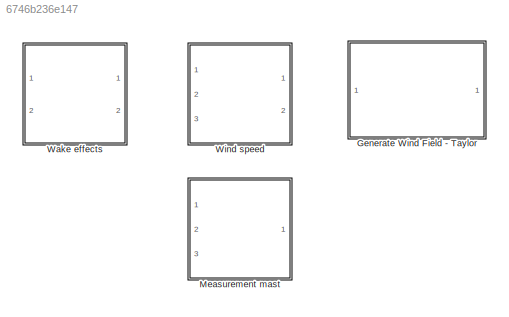
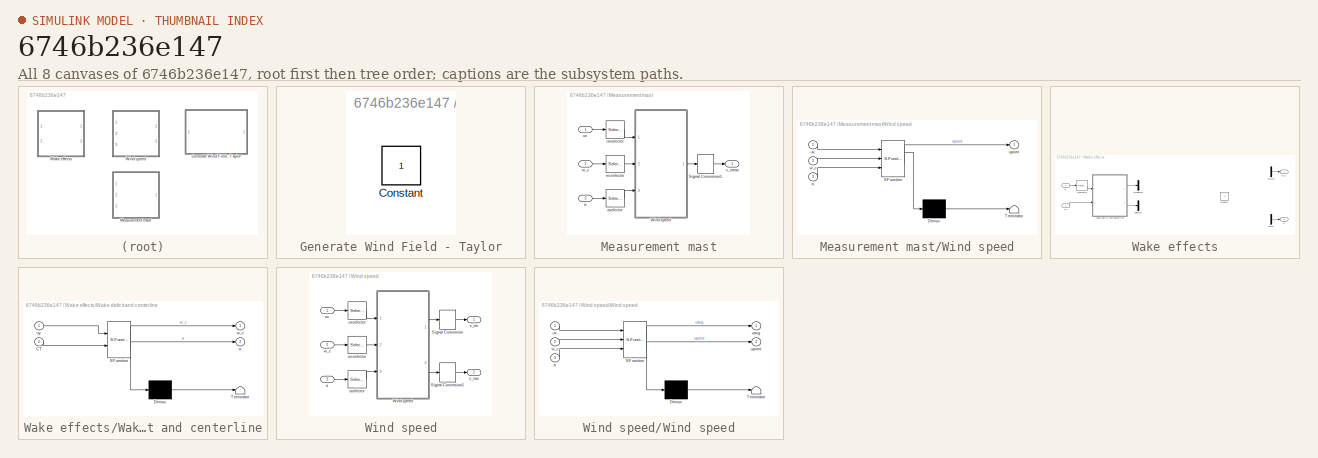
[diagram: thumbnail index - all 8 canvases of the model, root first then tree order]
MODEL slx_6746b236e147
KIND library
CONFIG AbsTol = auto
CONFIG EnableMultiTasking = on
CONFIG FixedStep = auto
CONFIG MaxStep = auto
CONFIG MinStep = auto
CONFIG RelTol = 1e-3
CONFIG SampleTimeConstraint = Unconstrained
CONFIG SolverName = ode45
CONFIG StartTime = 0.0
CONFIG StopTime = 10.0
BLOCK [SubSystem] Generate Wind Field - Taylor
  OpenFcn = create_windfield()
  Ports = []
BLOCK [Constant] Generate Wind Field - Taylor/Constant
BLOCK [SubSystem] Measurement mast
  AncestorBlock = libwind/Wind speed
  Ports = [3, 1]
BLOCK [SignalConversion] Measurement mast/Signal Conversion1
  ConversionOutput = Contiguous copy
  OverrideOpt = off
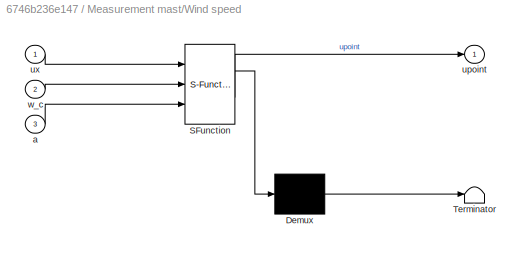
BLOCK [SubSystem] Measurement mast/Wind speed
  ErrorFcn = Stateflow.Translate.translate
  PermitHierarchicalResolution = ExplicitOnly
  Ports = [3, 1]
  SFBlockType = MATLAB Function
  TreatAsAtomicUnit = on
BLOCK [Demux] Measurement mast/Wind speed/ Demux 
  Outputs = 1
  Ports = [1, 1]
BLOCK [S-Function] Measurement mast/Wind speed/ SFunction 
  EnableBusSupport = off
  FunctionName = sf_sfun
  Parameters = p
  PortCounts = [3 2]
  Ports = [3, 2]
  SFcnIsStateOwnerBlock = off
  SFunctionDeploymentMode = off
  Tag = Stateflow S-Function 1
BLOCK [Terminator] Measurement mast/Wind speed/ Terminator 
BLOCK [Inport] Measurement mast/Wind speed/a
  Port = 3
BLOCK [Outport] Measurement mast/Wind speed/upoint
BLOCK [Inport] Measurement mast/Wind speed/ux
BLOCK [Inport] Measurement mast/Wind speed/w_c
  Port = 2
BLOCK [Inport] Measurement mast/a
  Port = 3
BLOCK [Selector] Measurement mast/aselector
  IndexOptions = Index vector (dialog),Select all
  Indices = p.mast.num,p.wt.num
  InputPortWidth = 3
  NumberOfDimensions = 2
  OutputSizes = 1,1
  Ports = [1, 1]
BLOCK [Inport] Measurement mast/ux
BLOCK [Selector] Measurement mast/uxselector
  IndexOptions = Select all,Index vector (dialog)
  Indices = [1 3],p.mast.num
  InputPortWidth = 3
  NumberOfDimensions = 2
  OutputSizes = 1,1
  Ports = [1, 1]
BLOCK [Outport] Measurement mast/v_meas
BLOCK [Inport] Measurement mast/w_c
  Port = 2
BLOCK [Selector] Measurement mast/wcselector
  IndexOptions = Index vector (dialog),Select all
  Indices = p.mast.num,p.wt.num
  InputPortWidth = 3
  NumberOfDimensions = 2
  OutputSizes = 1,1
  Ports = [1, 1]
BLOCK [SubSystem] Wake effects
  Ports = [2, 2]
BLOCK [Inport] Wake effects/CT
  Port = 2
BLOCK [Constant] Wake effects/Nodelay
BLOCK [SubSystem] Wake effects/Wake deficit and centerline
  ErrorFcn = Stateflow.Translate.translate
  PermitHierarchicalResolution = ExplicitOnly
  Ports = [2, 2]
  SFBlockType = MATLAB Function
  TreatAsAtomicUnit = on
BLOCK [Demux] Wake effects/Wake deficit and centerline/ Demux 
  Outputs = 1
  Ports = [1, 1]
BLOCK [S-Function] Wake effects/Wake deficit and centerline/ SFunction 
  EnableBusSupport = off
  FunctionName = sf_sfun
  Parameters = p
  PortCounts = [2 3]
  Ports = [2, 3]
  SFcnIsStateOwnerBlock = off
  SFunctionDeploymentMode = off
  Tag = Stateflow S-Function 3
BLOCK [Terminator] Wake effects/Wake deficit and centerline/ Terminator 
BLOCK [Inport] Wake effects/Wake deficit and centerline/CT
  Port = 2
BLOCK [Outport] Wake effects/Wake deficit and centerline/a
  Port = 2
BLOCK [Inport] Wake effects/Wake deficit and centerline/uy
BLOCK [Outport] Wake effects/Wake deficit and centerline/w_c
BLOCK [Outport] Wake effects/a
  Port = 2
BLOCK [Demux] Wake effects/ademux
  Outputs = 2
  Ports = [1, 2]
BLOCK [Mux] Wake effects/amux
  DisplayOption = bar
  Inputs = 2
  Ports = [2, 1]
BLOCK [Inport] Wake effects/uy
BLOCK [Selector] Wake effects/uyselector
  IndexOptions = Select all,Index vector (dialog)
  Indices = [1 3],p.wt.num
  InputPortWidth = 3
  NumberOfDimensions = 2
  OutputSizes = 1,1
  Ports = [1, 1]
BLOCK [Outport] Wake effects/w_c
BLOCK [Demux] Wake effects/wcdemux
  Outputs = 2
  Ports = [1, 2]
BLOCK [Mux] Wake effects/wcmux
  DisplayOption = bar
  Inputs = 2
  Ports = [2, 1]
BLOCK [SubSystem] Wind speed
  Ports = [3, 2]
BLOCK [SignalConversion] Wind speed/Signal Conversion
  ConversionOutput = Contiguous copy
  OverrideOpt = off
BLOCK [SignalConversion] Wind speed/Signal Conversion1
  ConversionOutput = Contiguous copy
  OverrideOpt = off
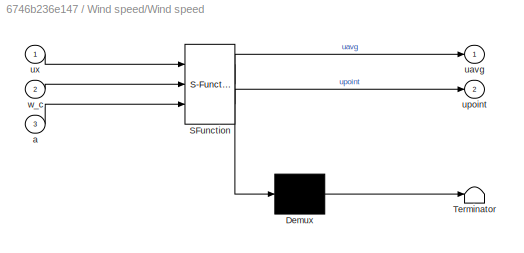
BLOCK [SubSystem] Wind speed/Wind speed
  ErrorFcn = Stateflow.Translate.translate
  PermitHierarchicalResolution = ExplicitOnly
  Ports = [3, 2]
  SFBlockType = MATLAB Function
  TreatAsAtomicUnit = on
BLOCK [Demux] Wind speed/Wind speed/ Demux 
  Outputs = 1
  Ports = [1, 1]
BLOCK [S-Function] Wind speed/Wind speed/ SFunction 
  EnableBusSupport = off
  FunctionName = sf_sfun
  Parameters = p
  PortCounts = [3 3]
  Ports = [3, 3]
  SFcnIsStateOwnerBlock = off
  SFunctionDeploymentMode = off
  Tag = Stateflow S-Function 4
BLOCK [Terminator] Wind speed/Wind speed/ Terminator 
BLOCK [Inport] Wind speed/Wind speed/a
  Port = 3
BLOCK [Outport] Wind speed/Wind speed/uavg
BLOCK [Outport] Wind speed/Wind speed/upoint
  Port = 2
BLOCK [Inport] Wind speed/Wind speed/ux
BLOCK [Inport] Wind speed/Wind speed/w_c
  Port = 2
BLOCK [Inport] Wind speed/a
  Port = 3
BLOCK [Selector] Wind speed/aselector
  IndexOptions = Index vector (dialog),Select all
  Indices = p.wt.num,p.wt.num
  InputPortWidth = 3
  NumberOfDimensions = 2
  OutputSizes = 1,1
  Ports = [1, 1]
BLOCK [Inport] Wind speed/ux
BLOCK [Selector] Wind speed/uxselector
  IndexOptions = Select all,Index vector (dialog)
  Indices = [1 3],p.wt.num
  InputPortWidth = 3
  NumberOfDimensions = 2
  OutputSizes = 1,1
  Ports = [1, 1]
BLOCK [Outport] Wind speed/v_nac
  Port = 2
BLOCK [Outport] Wind speed/v_rot
BLOCK [Inport] Wind speed/w_c
  Port = 2
BLOCK [Selector] Wind speed/wcselector
  IndexOptions = Index vector (dialog),Select all
  Indices = p.wt.num,p.wt.num
  InputPortWidth = 3
  NumberOfDimensions = 2
  OutputSizes = 1,1
  Ports = [1, 1]
LINE Wake effects/CT:1 -> Wake effects/Wake deficit and centerline:2
LINE Wake effects/Wake deficit and centerline:1 -> Wake effects/wcdemux:1
LINE Wake effects/Wake deficit and centerline:2 -> Wake effects/ademux:1
LINE Wake effects/amux:1 -> Wake effects/a:1
LINE Wake effects/uy:1 -> Wake effects/uyselector:1
LINE Wake effects/uyselector:1 -> Wake effects/Wake deficit and centerline:1
LINE Wake effects/wcmux:1 -> Wake effects/w_c:1
LINE Wind speed/Signal Conversion1:1 -> Wind speed/v_nac:1
LINE Wind speed/Signal Conversion:1 -> Wind speed/v_rot:1
LINE Wind speed/Wind speed:1 -> Wind speed/Signal Conversion:1
LINE Wind speed/Wind speed:2 -> Wind speed/Signal Conversion1:1
LINE Wind speed/a:1 -> Wind speed/aselector:1
LINE Wind speed/aselector:1 -> Wind speed/Wind speed:3
LINE Wind speed/ux:1 -> Wind speed/uxselector:1
LINE Wind speed/uxselector:1 -> Wind speed/Wind speed:1
LINE Wind speed/w_c:1 -> Wind speed/wcselector:1
LINE Wind speed/wcselector:1 -> Wind speed/Wind speed:2
CHART Measurement mast/Wind speed states=1 transitions=1
  STATE_LABEL 'eML_blk_kernel()'
  STATE_LABEL 'SCRIPT:\nfunction upoint  = windspeed(ux,w_c,a,p)\n%     ux    is the wind vector at the x position of the turbine\n%     w_c   is the vector of wake centers from the other turbins at the x position of the turbine\n%     a     is the vector of velocity deficits at this turbine from the other turbines\n%     P     is a structure containing parameters  \n       \n% %     Initialise variables\n    av = ones(...<+866ch>'
CHART Wake effects/Wake deficit and centerline states=1 transitions=1
  STATE_LABEL 'eML_blk_kernel()'
  STATE_LABEL 'SCRIPT:\nfunction [w_c,a] = wake(uy,CT,p)\n% %     Todo: Change length(uy)*grid_size to farm size?\n% %           Change such that parm is passed directly\n\n    w_c = zeros(length(p.farm.xTot),1);\n    a   = ones(length(p.farm.xTot),1);\n    \n% %     Find wake center and deficit for all other turbines/masts\n    for i = 1:length(p.farm.xTot)\n        if(p.farm.xTot(i)-p.wt.x > 0)  % Only if when the turbi...<+1229ch>'
CHART Wind speed/Wind speed states=1 transitions=1
  STATE_LABEL 'eML_blk_kernel()'
  STATE_LABEL 'SCRIPT:\nfunction [uavg,upoint] = windspeed(ux,w_c,a,p)\n%     ux    is the wind vector at the x position of the turbine\n%     w_c   is the vector of wake centers from the other turbins at the x position of the turbine\n%     a     is the vector of velocity deficits at this turbine from the other turbines\n%     P     is a structure containing parameters  \n       \n% %     Initialise variables\n    av =...<+1293ch>'
CHART  states=0 transitions=0
CHART  states=0 transitions=0
CHART  states=0 transitions=0
